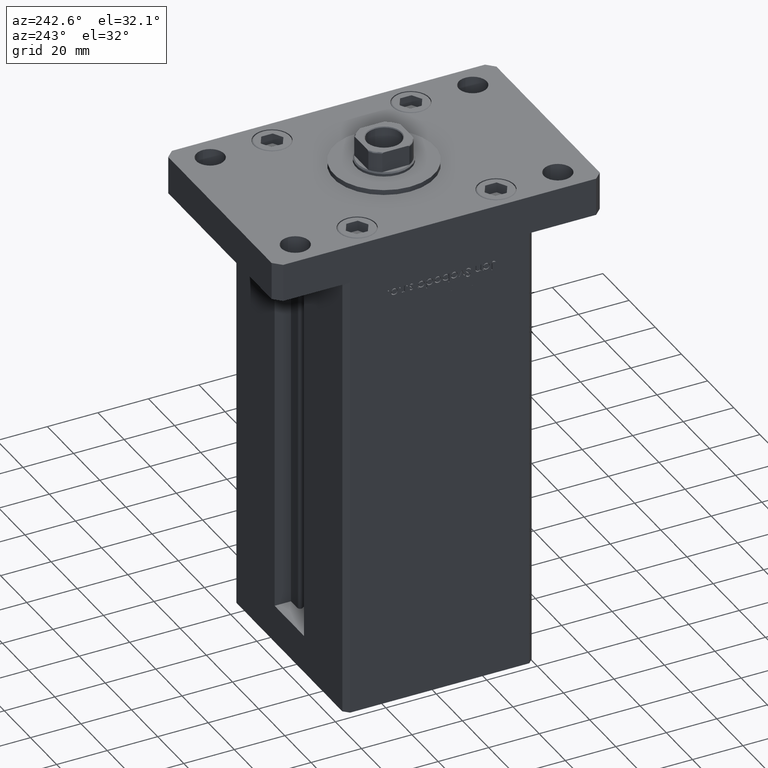
[diagram: clean part render]
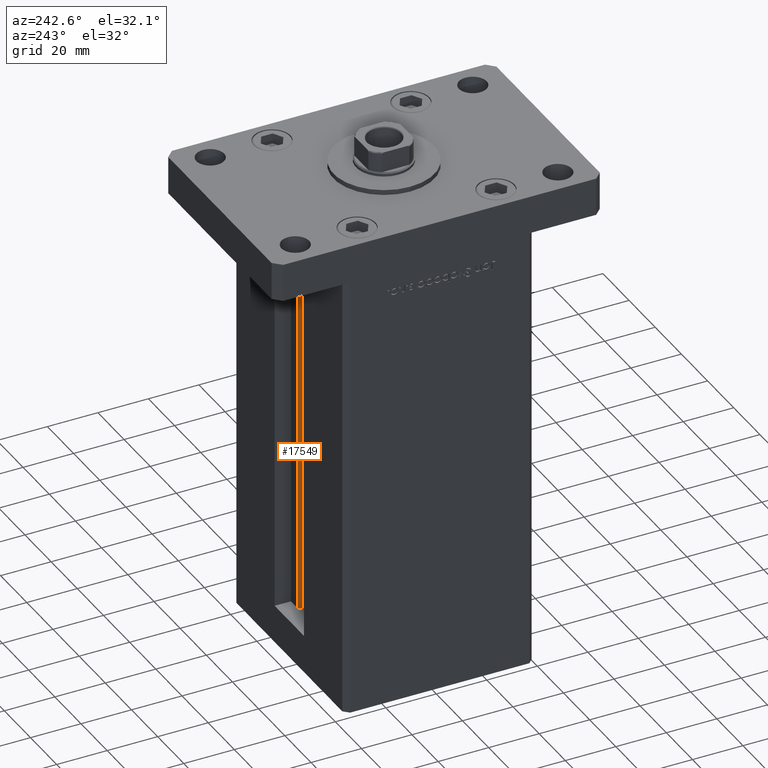
[diagram: same view with one face highlighted and labeled with its STEP entity id]
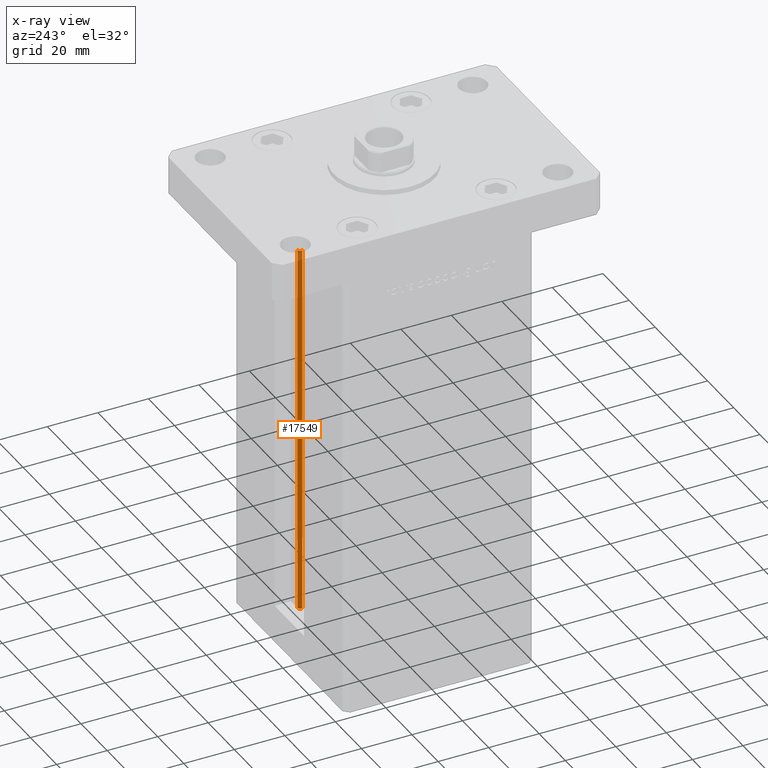
[diagram: x-ray of the same camera — body ghosted, the highlighted face saturated]
A machine part, auxiliary view. The second image highlights one B-rep face of the part: STEP entity #17549.
The next image is the same camera in x-ray: the body ghosted, the highlighted face saturated — about 13% of this face is hidden behind the body in this view.
In plain terms, the highlighted cylindrical surface (edge-blend (fillet) strip) has radius 0.9333 mm, axis along (0, 0, 1).
Its self-contained STEP definition (entity closure, byte-faithful):
#1400 = AXIS2_PLACEMENT_3D ( 'NONE', #51215, #13553, #39026 ) ;
#2874 = CARTESIAN_POINT ( 'NONE',  ( 5.375042956467943611, 29.59999999999899245, 0.000000000000000000 ) ) ;
#7112 = CARTESIAN_POINT ( 'NONE',  ( 6.183333333333999704, 30.99999999999999289, 0.000000000000000000 ) ) ;
#11112 = DIRECTION ( 'NONE',  ( 1.000000000000000000, 0.000000000000000000, 0.000000000000000000 ) ) ;
#11595 = AXIS2_PLACEMENT_3D ( 'NONE', #27087, #18964, #11112 ) ;
#13165 = EDGE_CURVE ( 'NONE', #51708, #25914, #35580, .T. ) ;
#13553 = DIRECTION ( 'NONE',  ( 0.000000000000000000, 0.000000000000000000, -1.000000000000000000 ) ) ;
#14040 = VERTEX_POINT ( 'NONE', #28420 ) ;
#14218 = VECTOR ( 'NONE', #35135, 1000.000000000000000 ) ;
#17299 = CARTESIAN_POINT ( 'NONE',  ( 6.183333333333999704, 30.99999999999999289, 0.000000000000000000 ) ) ;
#17549 = ADVANCED_FACE ( 'NONE', ( #23836 ), #47698, .T. ) ;
#18964 = DIRECTION ( 'NONE',  ( -0.000000000000000000, -0.000000000000000000, 1.000000000000000000 ) ) ;
#19073 = ORIENTED_EDGE ( 'NONE', *, *, #13165, .F. ) ;
#23836 = FACE_OUTER_BOUND ( 'NONE', #31873, .T. ) ;
#25462 = EDGE_CURVE ( 'NONE', #31542, #51708, #37774, .T. ) ;
#25914 = VERTEX_POINT ( 'NONE', #41567 ) ;
#26862 = DIRECTION ( 'NONE',  ( -0.000000000000000000, -0.000000000000000000, -1.000000000000000000 ) ) ;
#27087 = CARTESIAN_POINT ( 'NONE',  ( 6.183333333333999704, 30.06666666666599141, 0.000000000000000000 ) ) ;
#27521 = CARTESIAN_POINT ( 'NONE',  ( 5.375042956467943611, 29.59999999999899245, 0.000000000000000000 ) ) ;
#28240 = CIRCLE ( 'NONE', #1400, 0.9333333333340015914 ) ;
#28256 = AXIS2_PLACEMENT_3D ( 'NONE', #31480, #26862, #31749 ) ;
#28420 = CARTESIAN_POINT ( 'NONE',  ( 5.375042956467944499, 29.59999999999899245, 148.5000000000000000 ) ) ;
#31480 = CARTESIAN_POINT ( 'NONE',  ( 6.183333333333999704, 30.06666666666599141, 0.000000000000000000 ) ) ;
#31542 = VERTEX_POINT ( 'NONE', #27521 ) ;
#31749 = DIRECTION ( 'NONE',  ( 1.000000000000000000, 0.000000000000000000, 0.000000000000000000 ) ) ;
#31873 = EDGE_LOOP ( 'NONE', ( #19073, #47321, #51850, #38391 ) ) ;
#32325 = EDGE_CURVE ( 'NONE', #31542, #14040, #48142, .T. ) ;
#32580 = DIRECTION ( 'NONE',  ( -0.000000000000000000, -0.000000000000000000, 1.000000000000000000 ) ) ;
#35135 = DIRECTION ( 'NONE',  ( -0.000000000000000000, -0.000000000000000000, 1.000000000000000000 ) ) ;
#35580 = LINE ( 'NONE', #7112, #38277 ) ;
#37774 = CIRCLE ( 'NONE', #28256, 0.9333333333340015914 ) ;
#38277 = VECTOR ( 'NONE', #32580, 1000.000000000000000 ) ;
#38391 = ORIENTED_EDGE ( 'NONE', *, *, #41371, .T. ) ;
#39026 = DIRECTION ( 'NONE',  ( 1.000000000000000000, 0.000000000000000000, 0.000000000000000000 ) ) ;
#41371 = EDGE_CURVE ( 'NONE', #14040, #25914, #28240, .T. ) ;
#41567 = CARTESIAN_POINT ( 'NONE',  ( 6.183333333333999704, 30.99999999999999289, 148.5000000000000000 ) ) ;
#47321 = ORIENTED_EDGE ( 'NONE', *, *, #25462, .F. ) ;
#47698 = CYLINDRICAL_SURFACE ( 'NONE', #11595, 0.9333333333340015914 ) ;
#48142 = LINE ( 'NONE', #2874, #14218 ) ;
#51215 = CARTESIAN_POINT ( 'NONE',  ( 6.183333333333999704, 30.06666666666599141, 148.5000000000000000 ) ) ;
#51708 = VERTEX_POINT ( 'NONE', #17299 ) ;
#51850 = ORIENTED_EDGE ( 'NONE', *, *, #32325, .T. ) ;